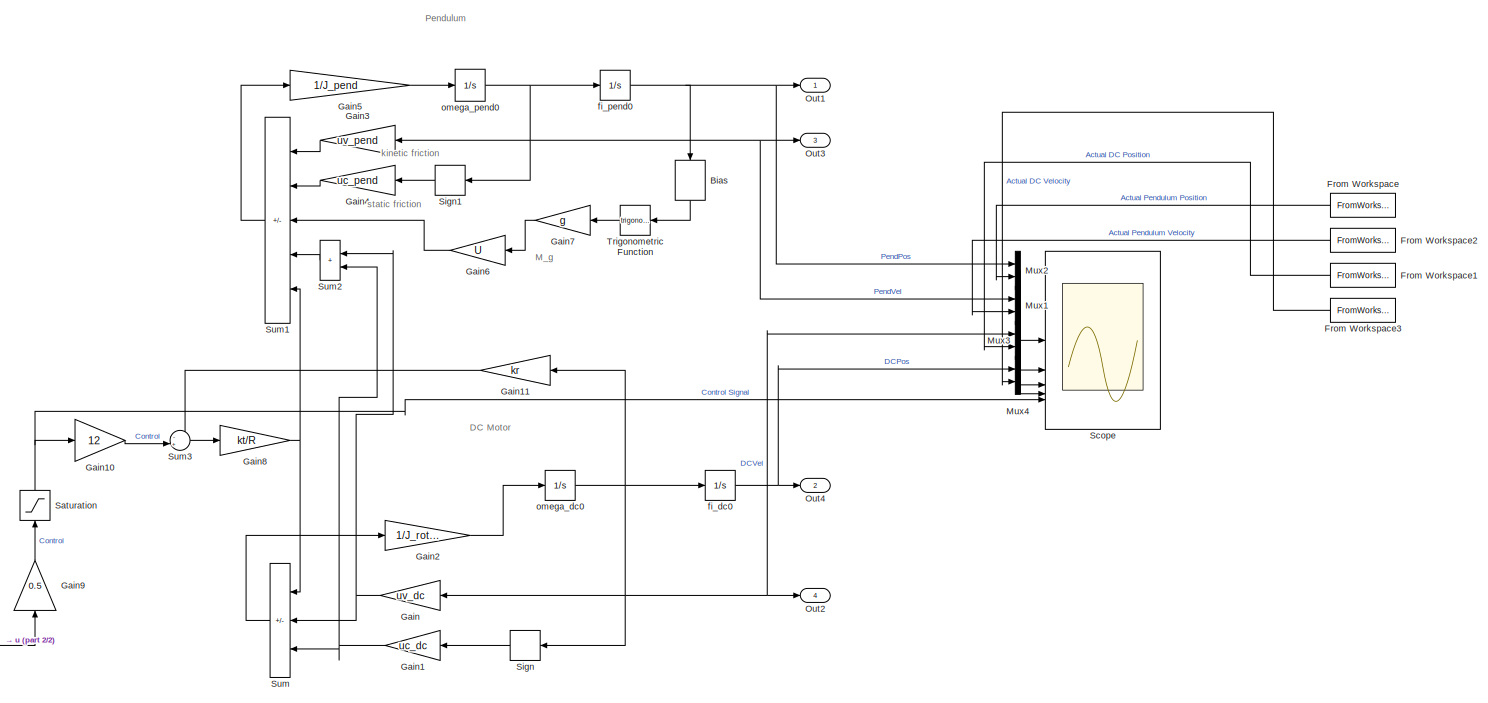
[diagram: root canvas - part 1/2, most of the canvas]
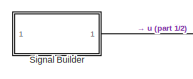
[diagram: root canvas - part 2/2, bottom left region]
MODEL slx_6b8d453f9140
KIND model
CONFIG AbsTol = auto
CONFIG EnableMultiTasking = off
CONFIG FixedStep = auto
CONFIG MaxStep = auto
CONFIG MinStep = auto
CONFIG RelTol = 1e-3
CONFIG SampleTimeConstraint = Unconstrained
CONFIG SolverName = ode3
CONFIG StartTime = 0.0
CONFIG StopTime = t(end)
BLOCK [Bias] Bias
  Bias = 0 % pi
  NameLocation = left
  SaturateOnIntegerOverflow = off
BLOCK [FromWorkspace] From Workspace
  NameLocation = top
  VariableName = [t,x1]
BLOCK [FromWorkspace] From Workspace1
  NameLocation = top
  VariableName = [t,x3]
BLOCK [FromWorkspace] From Workspace2
  NameLocation = top
  VariableName = [t,x2]
BLOCK [FromWorkspace] From Workspace3
  NameLocation = top
  VariableName = [t,x4]
BLOCK [Gain] Gain
  Gain = uv_dc
  NameLocation = top
BLOCK [Gain] Gain1
  Gain = uc_dc
  NameLocation = top
BLOCK [Gain] Gain10
  Gain = 12
BLOCK [Gain] Gain11
  Gain = kr
BLOCK [Gain] Gain2
  Gain = 1/J_rotor
BLOCK [Gain] Gain3
  Gain = uv_pend
  NameLocation = top
BLOCK [Gain] Gain4
  Gain = uc_pend
  NameLocation = top
BLOCK [Gain] Gain5
  Gain = 1/J_pend
BLOCK [Gain] Gain6
  Gain = U
  NameLocation = top
BLOCK [Gain] Gain7
  Gain = g
  NameLocation = top
BLOCK [Gain] Gain8
  Gain = kt/R
BLOCK [Gain] Gain9
  Gain = 0.5
  NameLocation = right
BLOCK [Mux] Mux1
  DisplayOption = bar
  Inputs = 2
BLOCK [Mux] Mux2
  DisplayOption = bar
  Inputs = 2
BLOCK [Mux] Mux3
  DisplayOption = bar
  Inputs = 2
BLOCK [Mux] Mux4
  DisplayOption = bar
  Inputs = 2
BLOCK [Outport] Out1
  SignalName = PendPos_sim
  VectorParamsAs1DForOutWhenUnconnected = off
BLOCK [Outport] Out2
  Port = 4
  SignalName = DCVel_sim
  VectorParamsAs1DForOutWhenUnconnected = off
BLOCK [Outport] Out3
  Port = 3
  SignalName = PendVel_sim
  VectorParamsAs1DForOutWhenUnconnected = off
BLOCK [Outport] Out4
  Port = 2
  SignalName = DCPos_sim
  VectorParamsAs1DForOutWhenUnconnected = off
BLOCK [Saturate] Saturation
  LowerLimit = -1
  NameLocation = right
  UpperLimit = 1
BLOCK [Scope] Scope
  Floating = off
  NumInputPorts = 5
  ScopeSpecificationString = Simulink.scopes.TimeScopeBlockCfg('CurrentConfiguration', extmgr.ConfigurationSet(extmgr.Configuration('Core','General UI',true),extmgr.Configuration('Core','Source UI',true),extmgr.Configuration('Sources','WiredSimulink',true),extmgr.Configuration('Visuals','Time Domain',true,'SerializedDisplays',{struct('MinYLimReal','-0.65382','MaxYLimReal','0.9814','YLabelReal','','MinYLimMag','0.00000','MaxYL...<+5260ch>
BLOCK [Signum] Sign
  NameLocation = top
  ZeroCross = off
BLOCK [Signum] Sign1
  NameLocation = top
  ZeroCross = off
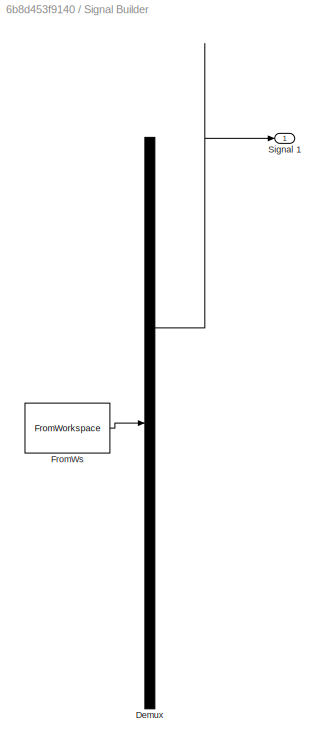
BLOCK [SubSystem] Signal Builder
  ClipboardFcn = sigbuilder_block('clipboard');
  CloseFcn = sigbuilder_block('close');
  ContinueFcn = sigbuilder_block('continue');
  CopyFcn = sigbuilder_block('copy');
  DeleteFcn = sigbuilder_block('delete');
  LoadFcn = sigbuilder_block('load');
  MaskHideContents = on
  ModelCloseFcn = sigbuilder_block('modelClose');
  NameChangeFcn = sigbuilder_block('namechange');
  OpenFcn = sigbuilder_block('open',[0 22.5 1440 729.75 ]);
  PauseFcn = sigbuilder_block('pause');
  PreSaveFcn = sigbuilder_block('preSave');
  StartFcn = sigbuilder_block('start');
  StopFcn = sigbuilder_block('stop');
  Tag = STV Subsys
BLOCK [Demux] Signal Builder/Demux
  DisplayOption = none
  Outputs = 1
  Tag = STV Demux
BLOCK [FromWorkspace] Signal Builder/FromWs
  Tag = STV FromWs
  VariableName = tuvar
BLOCK [Outport] Signal Builder/Signal 1
  Tag = STV Outport
  VectorParamsAs1DForOutWhenUnconnected = off
BLOCK [Sum] Sum
  IconShape = rectangular
  Inputs = +--
  NameLocation = top
BLOCK [Sum] Sum1
  IconShape = rectangular
  Inputs = ---+-
  NameLocation = top
BLOCK [Sum] Sum2
  IconShape = rectangular
  NameLocation = top
BLOCK [Sum] Sum3
  Inputs = -+|
BLOCK [Trigonometry] Trigonometric Function
  NameLocation = top
BLOCK [Integrator] fi_dc0
  InitialCondition = fi_dc0
BLOCK [Integrator] fi_pend0
  InitialCondition = 0.5
BLOCK [Integrator] omega_dc0
  InitialCondition = omega_dc0
BLOCK [Integrator] omega_pend0
  InitialCondition = omega_pend0
ANNOTATION (root): DC Motor
ANNOTATION (root): Pendulum
ANNOTATION (root): M_g
ANNOTATION (root): kinetic friction
ANNOTATION (root): static friction
LINE Bias:1 -> Trigonometric Function:1
LINE From Workspace1:1 -> Mux3:2
LINE From Workspace2:1 -> Mux1:2
LINE From Workspace3:1 -> Mux4:2
LINE From Workspace:1 -> Mux2:2
LINE Gain10:1 -> Sum3:2
LINE Gain11:1 -> Sum3:1
NET Gain1:1 -> Sum2:2, Sum:3
LINE Gain2:1 -> omega_dc0:1
LINE Gain3:1 -> Sum1:1
LINE Gain4:1 -> Sum1:2
LINE Gain5:1 -> omega_pend0:1
LINE Gain6:1 -> Sum1:3
LINE Gain7:1 -> Gain6:1
NET Gain8:1 -> Sum1:5, Sum:1
LINE Gain9:1 -> Saturation:1
NET Gain:1 -> Sum2:1, Sum:2
LINE Mux1:1 -> Scope:2
LINE Mux2:1 -> Scope:1
LINE Mux3:1 -> Scope:3
LINE Mux4:1 -> Scope:4
NET Saturation:1 -> Gain10:1, Scope:5
LINE Sign1:1 -> Gain4:1
LINE Sign:1 -> Gain1:1
LINE Signal Builder:1 -> Gain9:1
LINE Sum1:1 -> Gain5:1
LINE Sum2:1 -> Sum1:4
LINE Sum3:1 -> Gain8:1
LINE Sum:1 -> Gain2:1
LINE Trigonometric Function:1 -> Gain7:1
NET fi_dc0:1 -> Mux4:1, Out4:1
NET fi_pend0:1 -> Bias:1, Mux2:1, Out1:1
NET omega_dc0:1 -> Gain11:1, Gain:1, Mux3:1, Out2:1, Sign:1, fi_dc0:1
NET omega_pend0:1 -> Gain3:1, Mux1:1, Out3:1, Sign1:1, fi_pend0:1
note: NET lines group one-source signal fan-out (src -> all destinations, sorted); 1:1 wires keep LINE
